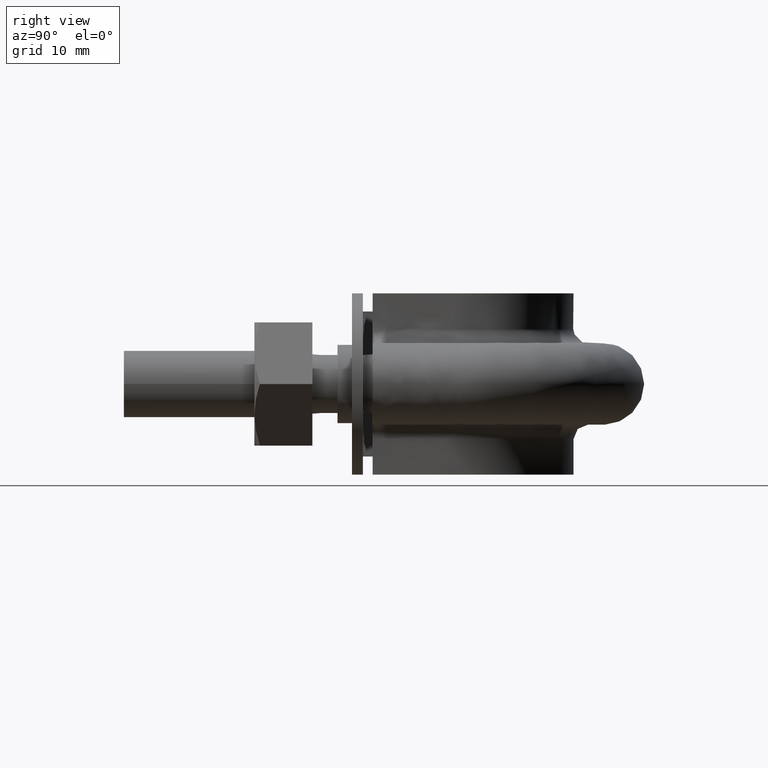
[diagram: clean part render]
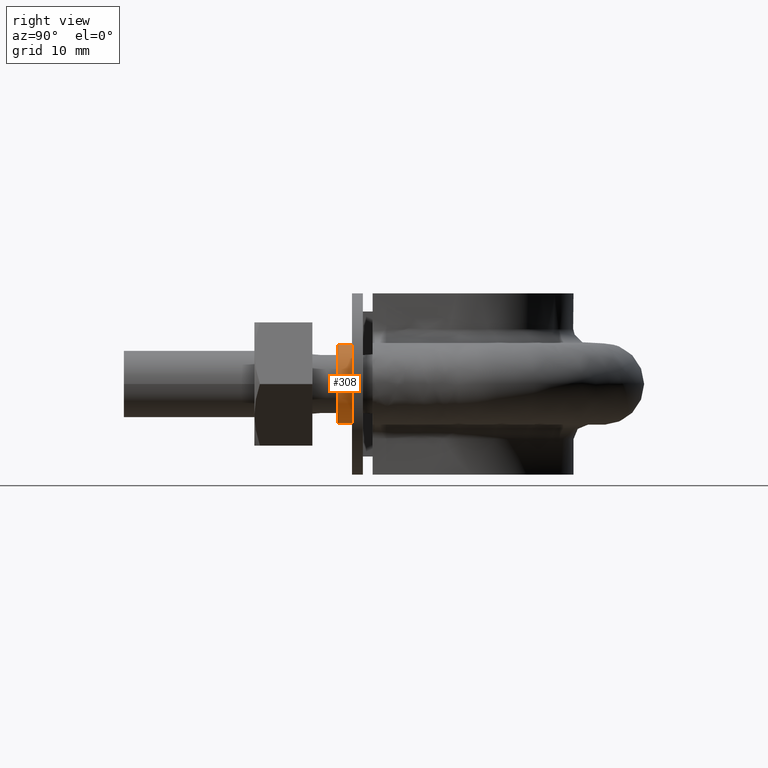
[diagram: same view with one face highlighted and labeled with its STEP entity id]
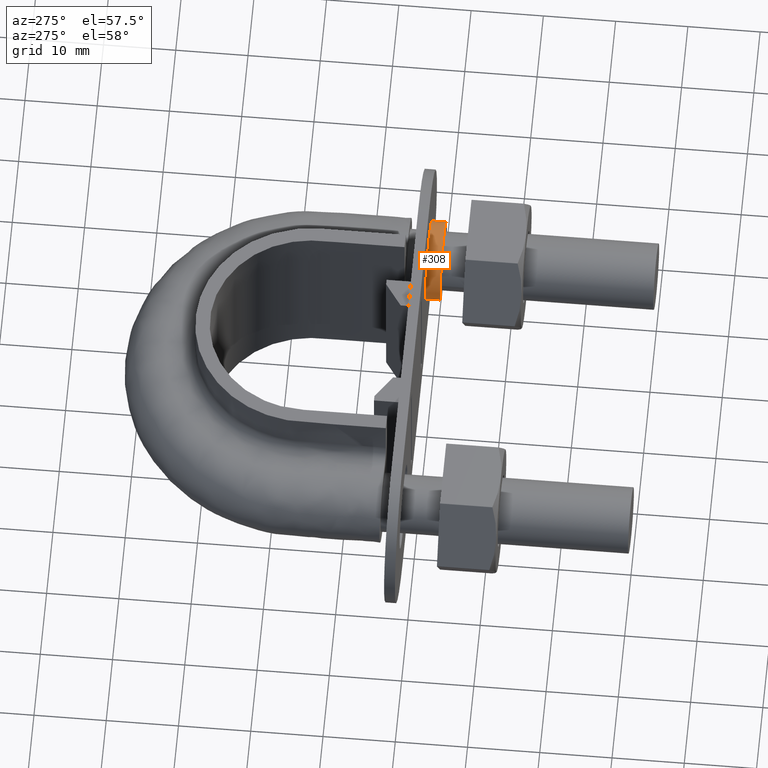
[diagram: same view with one face highlighted and labeled with its STEP entity id]
A machine part, right view. The second image highlights one B-rep face of the part: STEP entity #308.
A second angle (auxiliary view) of the same face is appended — the face is thin or edge-on in the first view.
In plain terms, the highlighted cylindrical surface (bore or boss wall) has radius 5.4 mm, axis along (0, 1, -0).
Its self-contained STEP definition (entity closure, byte-faithful):
#308 = ADVANCED_FACE( '', ( #465, #466 ), #467, .T. );
#465 = FACE_OUTER_BOUND( '', #1568, .T. );
#466 = FACE_OUTER_BOUND( '', #1569, .T. );
#467 = CYLINDRICAL_SURFACE( '', #1570, 5.40000000000000 );
#1568 = EDGE_LOOP( '', ( #2012 ) );
#1569 = EDGE_LOOP( '', ( #2013 ) );
#1570 = AXIS2_PLACEMENT_3D( '', #2014, #2015, #2016 );
#2012 = ORIENTED_EDGE( '', *, *, #2453, .F. );
#2013 = ORIENTED_EDGE( '', *, *, #2520, .T. );
#2014 = CARTESIAN_POINT( '', ( 20.0000000000000, 29.4500000000000, -4.63020803994900E-012 ) );
#2015 = DIRECTION( '', ( 4.90464398173536E-016, 1.00000000000000, -4.52605671983582E-017 ) );
#2016 = DIRECTION( '', ( 1.00000000000000, -4.90464398173547E-016, -2.31648034088059E-013 ) );
#2453 = EDGE_CURVE( '', #2687, #2687, #2688, .T. );
#2520 = EDGE_CURVE( '', #2799, #2799, #2800, .T. );
#2687 = VERTEX_POINT( '', #3231 );
#2688 = CIRCLE( '', #3232, 5.40000000000000 );
#2799 = VERTEX_POINT( '', #3402 );
#2800 = CIRCLE( '', #3403, 5.40000000000000 );
#3231 = CARTESIAN_POINT( '', ( 20.0000000000000, 31.4500000000000, 5.39999999999537 ) );
#3232 = AXIS2_PLACEMENT_3D( '', #3775, #3776, #3777 );
#3402 = CARTESIAN_POINT( '', ( 20.0000000000000, 29.4500000000000, 5.39999999999537 ) );
#3403 = AXIS2_PLACEMENT_3D( '', #3858, #3859, #3860 );
#3775 = CARTESIAN_POINT( '', ( 20.0000000000000, 31.4500000000000, -4.63029856108340E-012 ) );
#3776 = DIRECTION( '', ( -2.21986968519356E-032, 1.00000000000000, -4.52605671983580E-017 ) );
#3777 = DIRECTION( '', ( 0.000000000000000, 4.52605671983580E-017, 1.00000000000000 ) );
#3858 = CARTESIAN_POINT( '', ( 20.0000000000000, 29.4500000000000, -4.63020803994900E-012 ) );
#3859 = DIRECTION( '', ( -2.21986968519356E-032, 1.00000000000000, -4.52605671983580E-017 ) );
#3860 = DIRECTION( '', ( 0.000000000000000, 4.52605671983580E-017, 1.00000000000000 ) );